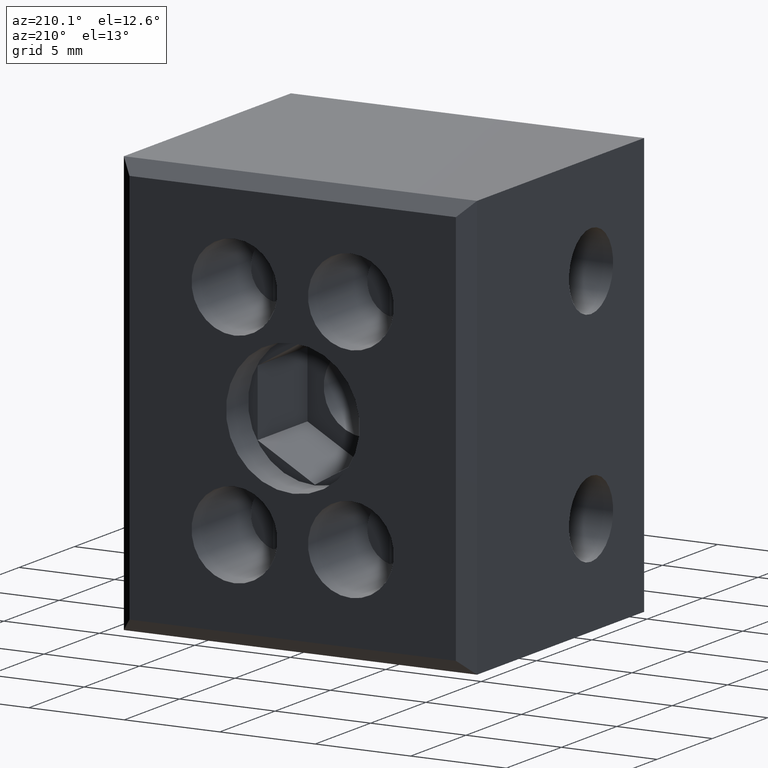
[diagram: clean part render]
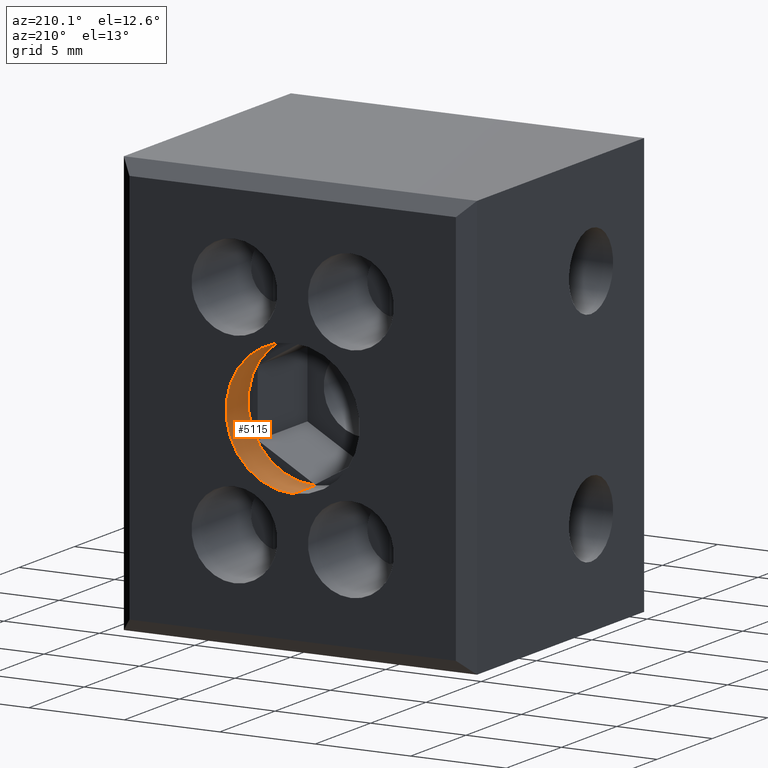
[diagram: same view with one face highlighted and labeled with its STEP entity id]
A machine part, auxiliary view. The second image highlights one B-rep face of the part: STEP entity #5115.
In plain terms, the highlighted cylindrical surface (partial cylindrical patch) has radius 3.5 mm, axis along (-0, 1, -0).
Its self-contained STEP definition (entity closure, byte-faithful):
#86 = VERTEX_POINT ( 'NONE', #318 ) ;
#112 = VERTEX_POINT ( 'NONE', #384 ) ;
#118 = VERTEX_POINT ( 'NONE', #342 ) ;
#161 = VERTEX_POINT ( 'NONE', #436 ) ;
#318 = CARTESIAN_POINT ( 'NONE',  ( 8.999999999999996400, 16.50000000000000000, -7.246091777729321700 ) ) ;
#342 = CARTESIAN_POINT ( 'NONE',  ( 8.999999999999996400, 16.50000000000000000, -14.24609177772932100 ) ) ;
#384 = CARTESIAN_POINT ( 'NONE',  ( 8.999999999999996400, 14.50000000000000000, -7.246091777729321700 ) ) ;
#436 = CARTESIAN_POINT ( 'NONE',  ( 8.999999999999996400, 14.50000000000000000, -14.24609177772932100 ) ) ;
#782 = DIRECTION ( 'NONE',  ( 0.0000000000000000000, 1.000000000000000000, 0.0000000000000000000 ) ) ;
#807 = CARTESIAN_POINT ( 'NONE',  ( 8.999999999999996400, 16.50000000000000000, -10.74609177772932100 ) ) ;
#812 = DIRECTION ( 'NONE',  ( 0.0000000000000000000, 0.0000000000000000000, 1.000000000000000000 ) ) ;
#1065 = AXIS2_PLACEMENT_3D ( 'NONE', #2642, #2643, #2657 ) ;
#1393 = EDGE_LOOP ( 'NONE', ( #2021, #2048, #2074, #2083 ) ) ;
#1551 = EDGE_CURVE ( 'NONE', #86, #118, #3277, .T. ) ;
#1717 = EDGE_CURVE ( 'NONE', #112, #161, #3444, .T. ) ;
#2021 = ORIENTED_EDGE ( 'NONE', *, *, #2365, .F. ) ;
#2048 = ORIENTED_EDGE ( 'NONE', *, *, #1717, .F. ) ;
#2074 = ORIENTED_EDGE ( 'NONE', *, *, #2372, .T. ) ;
#2083 = ORIENTED_EDGE ( 'NONE', *, *, #1551, .T. ) ;
#2365 = EDGE_CURVE ( 'NONE', #161, #118, #4427, .T. ) ;
#2372 = EDGE_CURVE ( 'NONE', #112, #86, #3888, .T. ) ;
#2624 = FACE_OUTER_BOUND ( 'NONE', #1393, .T. ) ;
#2631 = CYLINDRICAL_SURFACE ( 'NONE', #1065, 3.499999999999999600 ) ;
#2642 = CARTESIAN_POINT ( 'NONE',  ( 8.999999999999996400, 14.50000000000000000, -10.74609177772932100 ) ) ;
#2643 = DIRECTION ( 'NONE',  ( -0.0000000000000000000, 1.000000000000000000, -0.0000000000000000000 ) ) ;
#2657 = DIRECTION ( 'NONE',  ( 0.0000000000000000000, 0.0000000000000000000, 1.000000000000000000 ) ) ;
#3277 = CIRCLE ( 'NONE', #3320, 3.499999999999999600 ) ;
#3320 = AXIS2_PLACEMENT_3D ( 'NONE', #807, #782, #812 ) ;
#3444 = CIRCLE ( 'NONE', #3459, 3.499999999999999600 ) ;
#3459 = AXIS2_PLACEMENT_3D ( 'NONE', #4650, #4656, #4652 ) ;
#3554 = VECTOR ( 'NONE', #4424, 1000.000000000000000 ) ;
#3564 = VECTOR ( 'NONE', #3889, 1000.000000000000000 ) ;
#3888 = LINE ( 'NONE', #3904, #3564 ) ;
#3889 = DIRECTION ( 'NONE',  ( -0.0000000000000000000, 1.000000000000000000, -0.0000000000000000000 ) ) ;
#3904 = CARTESIAN_POINT ( 'NONE',  ( 8.999999999999996400, 14.50000000000000000, -7.246091777729321700 ) ) ;
#4424 = DIRECTION ( 'NONE',  ( -0.0000000000000000000, 1.000000000000000000, -0.0000000000000000000 ) ) ;
#4427 = LINE ( 'NONE', #4430, #3554 ) ;
#4430 = CARTESIAN_POINT ( 'NONE',  ( 8.999999999999996400, 14.50000000000000000, -14.24609177772932100 ) ) ;
#4650 = CARTESIAN_POINT ( 'NONE',  ( 8.999999999999996400, 14.50000000000000000, -10.74609177772932100 ) ) ;
#4652 = DIRECTION ( 'NONE',  ( 0.0000000000000000000, 0.0000000000000000000, 1.000000000000000000 ) ) ;
#4656 = DIRECTION ( 'NONE',  ( 0.0000000000000000000, 1.000000000000000000, 0.0000000000000000000 ) ) ;
#5115 = ADVANCED_FACE ( 'NONE', ( #2624 ), #2631, .F. ) ;